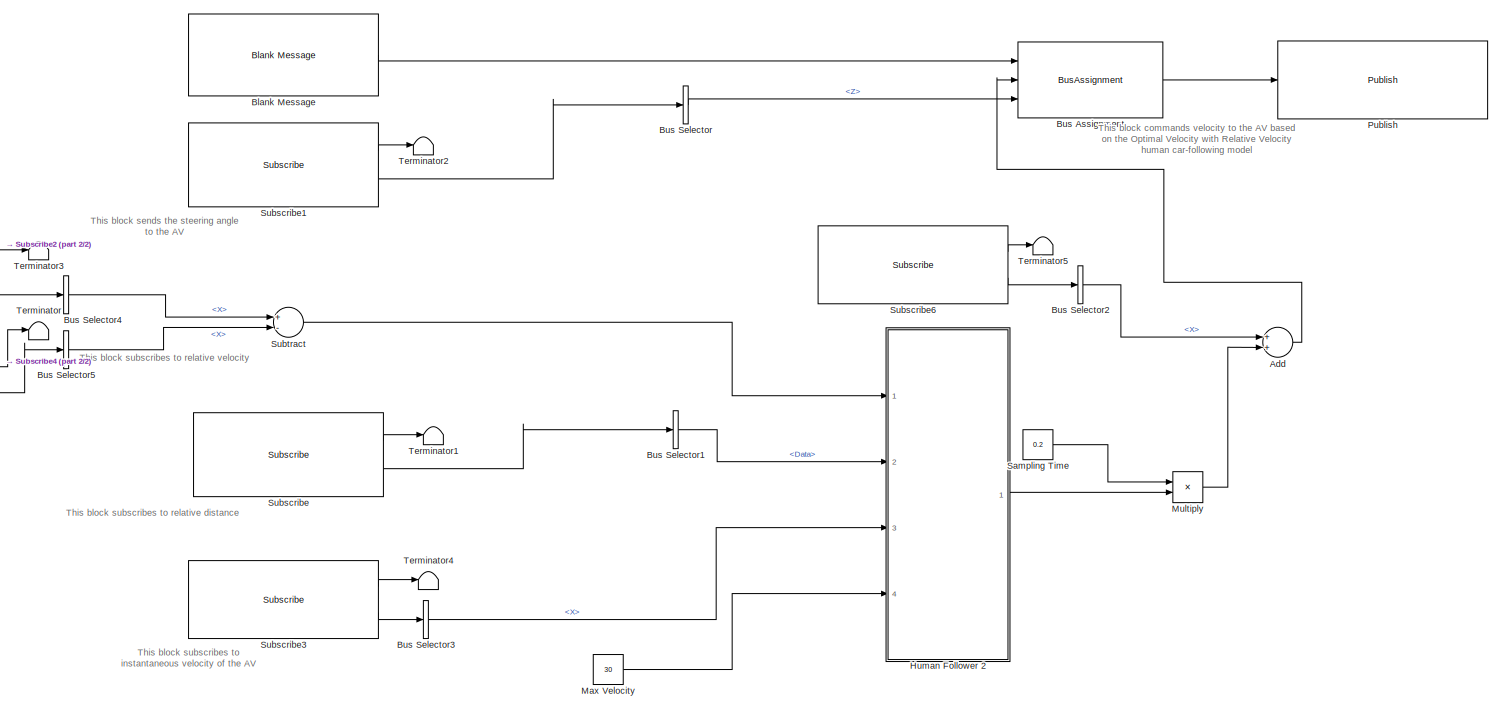
[diagram: root canvas - part 1/2, most of the canvas]
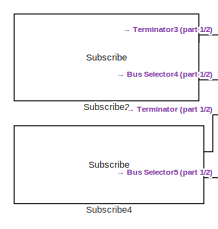
[diagram: root canvas - part 2/2, middle left region]
MODEL slx_cad02844368d
KIND model
CONFIG AbsTol = auto
CONFIG EnableMultiTasking = off
CONFIG FixedStep = auto
CONFIG MaxStep = auto
CONFIG MinStep = auto
CONFIG RelTol = 1e-3
CONFIG SampleTimeConstraint = Unconstrained
CONFIG Solver = VariableStepAuto
CONFIG SolverName = VariableStepAuto
CONFIG StartTime = 0.0
CONFIG StopTime = inf
BLOCK [Sum] Add
  InputSameDT = off
  OutDataTypeStr = Inherit: Inherit via internal rule
  Ports = [2, 1]
  SaturateOnIntegerOverflow = off
BLOCK [Reference] Blank Message  REF=robotlib/Blank Message
  Ports = [0, 1]
  SourceBlock = robotlib/Blank Message
  SourceProductBaseCode = RO
  SourceProductName = Robotics System Toolbox
  SourceType = ROS Blank Message
BLOCK [BusAssignment] Bus Assignment
  AssignedSignals = Linear.X,Angular.Z
  Ports = [3, 1]
BLOCK [BusSelector] Bus Selector
  OutputAsBus = off
  OutputSignals = Angular.Z
  Ports = [1, 1]
BLOCK [BusSelector] Bus Selector1
  OutputAsBus = off
  OutputSignals = Data
  Ports = [1, 1]
BLOCK [BusSelector] Bus Selector2
  OutputAsBus = off
  OutputSignals = Linear.X
  Ports = [1, 1]
BLOCK [BusSelector] Bus Selector3
  OutputAsBus = off
  OutputSignals = Linear.X
  Ports = [1, 1]
BLOCK [BusSelector] Bus Selector4
  OutputAsBus = off
  OutputSignals = Linear.X
  Ports = [1, 1]
BLOCK [BusSelector] Bus Selector5
  OutputAsBus = off
  OutputSignals = Linear.X
  Ports = [1, 1]
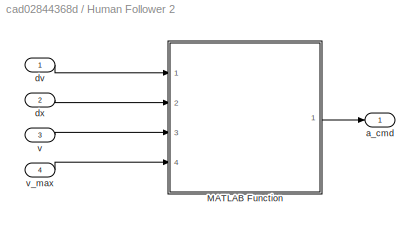
BLOCK [SubSystem] Human Follower 2
  Ports = [4, 1]
  RequestExecContextInheritance = off
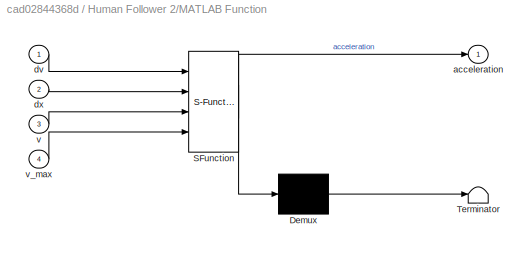
BLOCK [SubSystem] Human Follower 2/MATLAB Function
  ErrorFcn = Stateflow.Translate.translate
  PermitHierarchicalResolution = ExplicitOnly
  Ports = [4, 1]
  RequestExecContextInheritance = off
  SFBlockType = MATLAB Function
  TreatAsAtomicUnit = on
BLOCK [Demux] Human Follower 2/MATLAB Function/ Demux 
  Outputs = 1
  Ports = [1, 1]
BLOCK [S-Function] Human Follower 2/MATLAB Function/ SFunction 
  EnableBusSupport = on
  FunctionName = sf_sfun
  PortCounts = [4 2]
  Ports = [4, 2]
  SFcnIsStateOwnerBlock = off
  SFunctionDeploymentMode = off
  Tag = Stateflow S-Function humanFollower2 2
BLOCK [Terminator] Human Follower 2/MATLAB Function/ Terminator 
BLOCK [Outport] Human Follower 2/MATLAB Function/acceleration
  IconDisplay = Port number
BLOCK [Inport] Human Follower 2/MATLAB Function/dv
  IconDisplay = Port number
BLOCK [Inport] Human Follower 2/MATLAB Function/dx
  IconDisplay = Port number
  Port = 2
BLOCK [Inport] Human Follower 2/MATLAB Function/v
  IconDisplay = Port number
  Port = 3
BLOCK [Inport] Human Follower 2/MATLAB Function/v_max
  IconDisplay = Port number
  Port = 4
BLOCK [Outport] Human Follower 2/a_cmd
  IconDisplay = Port number
BLOCK [Inport] Human Follower 2/dv
  IconDisplay = Port number
BLOCK [Inport] Human Follower 2/dx
  IconDisplay = Port number
  Port = 2
BLOCK [Inport] Human Follower 2/v
  IconDisplay = Port number
  Port = 3
BLOCK [Inport] Human Follower 2/v_max
  IconDisplay = Port number
  Port = 4
BLOCK [Constant] Max Velocity
  Value = 30
BLOCK [Product] Multiply
  InputSameDT = off
  OutDataTypeStr = Inherit: Inherit via internal rule
  Ports = [2, 1]
  RndMeth = Floor
  SaturateOnIntegerOverflow = off
BLOCK [Reference] Publish  REF=robotlib/Publish
  Ports = [1]
  SourceBlock = robotlib/Publish
  SourceProductBaseCode = RO
  SourceProductName = Robotics System Toolbox
  SourceType = ROS Publish
BLOCK [Constant] Sampling Time
  Value = 0.2
BLOCK [Reference] Subscribe  REF=robotlib/Subscribe
  Ports = [0, 2]
  SourceBlock = robotlib/Subscribe
  SourceProductBaseCode = RO
  SourceProductName = Robotics System Toolbox
  SourceType = ROS Subscribe
BLOCK [Reference] Subscribe1  REF=robotlib/Subscribe
  Ports = [0, 2]
  SourceBlock = robotlib/Subscribe
  SourceProductBaseCode = RO
  SourceProductName = Robotics System Toolbox
  SourceType = ROS Subscribe
BLOCK [Reference] Subscribe2  REF=robotlib/Subscribe
  Ports = [0, 2]
  SourceBlock = robotlib/Subscribe
  SourceProductBaseCode = RO
  SourceProductName = Robotics System Toolbox
  SourceType = ROS Subscribe
BLOCK [Reference] Subscribe3  REF=robotlib/Subscribe
  Ports = [0, 2]
  SourceBlock = robotlib/Subscribe
  SourceProductBaseCode = RO
  SourceProductName = Robotics System Toolbox
  SourceType = ROS Subscribe
BLOCK [Reference] Subscribe4  REF=robotlib/Subscribe
  Ports = [0, 2]
  SourceBlock = robotlib/Subscribe
  SourceProductBaseCode = RO
  SourceProductName = Robotics System Toolbox
  SourceType = ROS Subscribe
BLOCK [Reference] Subscribe6  REF=robotlib/Subscribe
  Ports = [0, 2]
  SourceBlock = robotlib/Subscribe
  SourceProductBaseCode = RO
  SourceProductName = Robotics System Toolbox
  SourceType = ROS Subscribe
BLOCK [Sum] Subtract
  InputSameDT = off
  Inputs = +-
  OutDataTypeStr = Inherit: Inherit via internal rule
  Ports = [2, 1]
  SaturateOnIntegerOverflow = off
BLOCK [Terminator] Terminator
BLOCK [Terminator] Terminator1
BLOCK [Terminator] Terminator2
BLOCK [Terminator] Terminator3
BLOCK [Terminator] Terminator4
BLOCK [Terminator] Terminator5
ANNOTATION (root): This block commands velocity to the AV based on the Optimal Velocity with Relative Velocity human car-following model
ANNOTATION (root): This block sends the steering angle to the AV
ANNOTATION (root): This block subscribes to relative distance
ANNOTATION (root): This block subscribes to relative velocity
ANNOTATION (root): This block subscribes to instantaneous velocity of the AV
LINE Add:1 -> Bus Assignment:2
LINE Blank Message:1 -> Bus Assignment:1
LINE Bus Assignment:1 -> Publish:1
LINE Bus Selector1:1 -> Human Follower 2:2
LINE Bus Selector2:1 -> Add:1
LINE Bus Selector3:1 -> Human Follower 2:3
LINE Bus Selector4:1 -> Subtract:1
LINE Bus Selector5:1 -> Subtract:2
LINE Bus Selector:1 -> Bus Assignment:3
LINE Human Follower 2/MATLAB Function:1 -> Human Follower 2/a_cmd:1
LINE Human Follower 2/dv:1 -> Human Follower 2/MATLAB Function:1
LINE Human Follower 2/dx:1 -> Human Follower 2/MATLAB Function:2
LINE Human Follower 2/v:1 -> Human Follower 2/MATLAB Function:3
LINE Human Follower 2/v_max:1 -> Human Follower 2/MATLAB Function:4
LINE Human Follower 2:1 -> Multiply:2
LINE Max Velocity:1 -> Human Follower 2:4
LINE Multiply:1 -> Add:2
LINE Sampling Time:1 -> Multiply:1
LINE Subscribe1:1 -> Terminator2:1
LINE Subscribe1:2 -> Bus Selector:1
LINE Subscribe2:1 -> Terminator3:1
LINE Subscribe2:2 -> Bus Selector4:1
LINE Subscribe3:1 -> Terminator4:1
LINE Subscribe3:2 -> Bus Selector3:1
LINE Subscribe4:1 -> Terminator:1
LINE Subscribe4:2 -> Bus Selector5:1
LINE Subscribe6:1 -> Terminator5:1
LINE Subscribe6:2 -> Bus Selector2:1
LINE Subscribe:1 -> Terminator1:1
LINE Subscribe:2 -> Bus Selector1:1
LINE Subtract:1 -> Human Follower 2:1
CHART Human Follower 2/MATLAB Function states=1 transitions=1
  STATE_LABEL 'eML_blk_kernel()'
  STATE_LABEL 'SCRIPT:\nfunction acceleration = fcn(dv, dx, v, v_max)\n\nif dx <= 10\n    V = 0;\nelseif dx <= 35\n    V = dx - 10;\nelse\n    V = 30;\nend\n\nif dv + v <= v_max\n    w = v + dv;\nelse\n    w = v_max;\nend\n\nacceleration = 0.1*(V-v) + 0.5*(w-v);\n'
